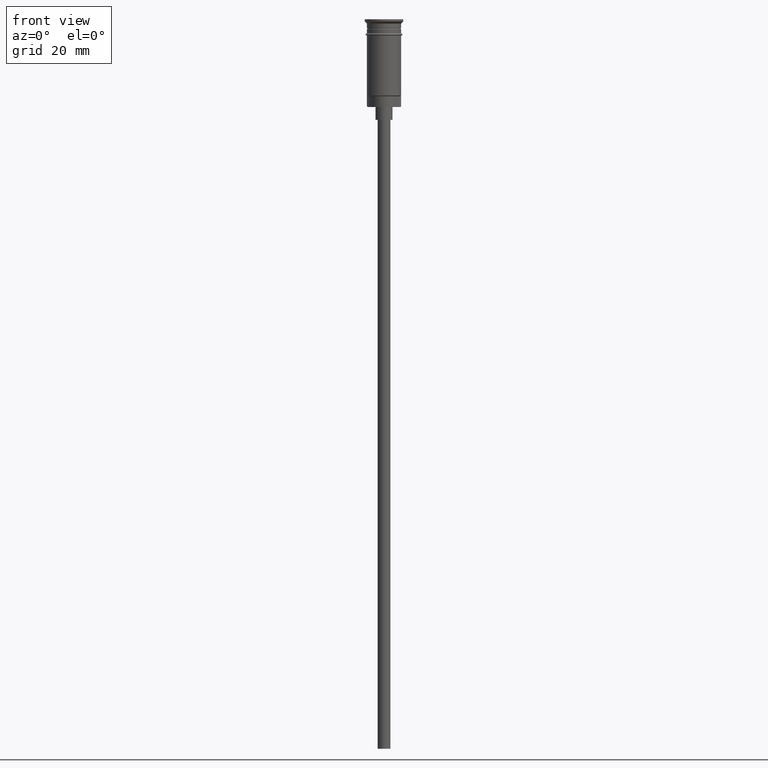
[diagram: clean part render]
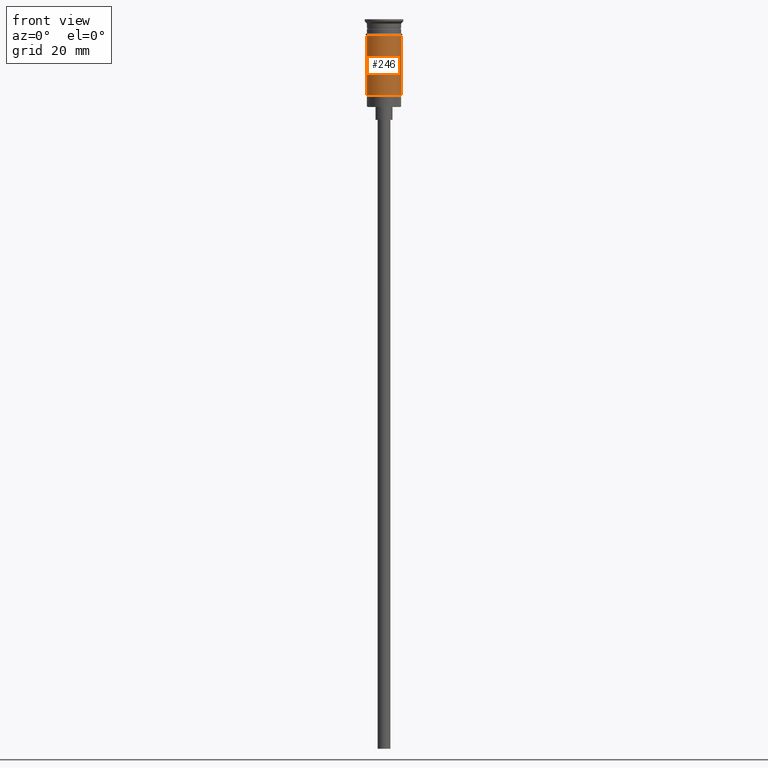
[diagram: same view with one face highlighted and labeled with its STEP entity id]
A machine part, front view. The second image highlights one B-rep face of the part: STEP entity #246.
In plain terms, the highlighted cylindrical surface (edge-blend (fillet) strip) has radius 4 mm, axis along (-0, -0, 1).
Its self-contained STEP definition (entity closure, byte-faithful):
#5 = FACE_OUTER_BOUND ( 'NONE', #204, .T. ) ;
#72 = EDGE_CURVE ( 'NONE', #1213, #1197, #335, .T. ) ;
#76 = DIRECTION ( 'NONE',  ( 1.000000000000000000, 0.000000000000000000, 0.000000000000000000 ) ) ;
#137 = CYLINDRICAL_SURFACE ( 'NONE', #1473, 4.000000000000000000 ) ;
#204 = EDGE_LOOP ( 'NONE', ( #1239, #538, #1518, #950 ) ) ;
#246 = ADVANCED_FACE ( 'NONE', ( #5 ), #137, .T. ) ;
#335 = CIRCLE ( 'NONE', #625, 4.000000000000000000 ) ;
#359 = LINE ( 'NONE', #875, #1301 ) ;
#385 = DIRECTION ( 'NONE',  ( -0.000000000000000000, -0.000000000000000000, 1.000000000000000000 ) ) ;
#449 = CARTESIAN_POINT ( 'NONE',  ( 4.000000000000000000, 0.000000000000000000, -3.799999999999998490 ) ) ;
#467 = DIRECTION ( 'NONE',  ( -0.000000000000000000, -0.000000000000000000, 1.000000000000000000 ) ) ;
#501 = CARTESIAN_POINT ( 'NONE',  ( -4.000000000000000000, 4.898587196589412829E-16, 0.000000000000000000 ) ) ;
#522 = DIRECTION ( 'NONE',  ( 1.000000000000000000, 0.000000000000000000, 0.000000000000000000 ) ) ;
#535 = VERTEX_POINT ( 'NONE', #449 ) ;
#538 = ORIENTED_EDGE ( 'NONE', *, *, #72, .T. ) ;
#625 = AXIS2_PLACEMENT_3D ( 'NONE', #975, #467, #1436 ) ;
#691 = CARTESIAN_POINT ( 'NONE',  ( -3.999999999999997335, 0.000000000000000000, -17.79999999999998295 ) ) ;
#693 = CARTESIAN_POINT ( 'NONE',  ( 0.000000000000000000, 0.000000000000000000, -3.799999999999998490 ) ) ;
#768 = CARTESIAN_POINT ( 'NONE',  ( 0.000000000000000000, 0.000000000000000000, 0.000000000000000000 ) ) ;
#793 = CARTESIAN_POINT ( 'NONE',  ( 4.000000000000000000, 4.898587196589412829E-16, -17.79999999999998295 ) ) ;
#875 = CARTESIAN_POINT ( 'NONE',  ( 4.000000000000000000, 0.000000000000000000, 0.000000000000000000 ) ) ;
#880 = EDGE_CURVE ( 'NONE', #1331, #535, #912, .T. ) ;
#912 = CIRCLE ( 'NONE', #1423, 4.000000000000000000 ) ;
#950 = ORIENTED_EDGE ( 'NONE', *, *, #880, .F. ) ;
#975 = CARTESIAN_POINT ( 'NONE',  ( 0.000000000000000000, 0.000000000000000000, -17.79999999999998295 ) ) ;
#983 = DIRECTION ( 'NONE',  ( -0.000000000000000000, -0.000000000000000000, 1.000000000000000000 ) ) ;
#993 = VECTOR ( 'NONE', #385, 1000.000000000000000 ) ;
#1085 = EDGE_CURVE ( 'NONE', #1197, #535, #359, .T. ) ;
#1114 = DIRECTION ( 'NONE',  ( -0.000000000000000000, -0.000000000000000000, 1.000000000000000000 ) ) ;
#1116 = LINE ( 'NONE', #501, #993 ) ;
#1157 = EDGE_CURVE ( 'NONE', #1213, #1331, #1116, .T. ) ;
#1191 = DIRECTION ( 'NONE',  ( -0.000000000000000000, -0.000000000000000000, 1.000000000000000000 ) ) ;
#1197 = VERTEX_POINT ( 'NONE', #793 ) ;
#1213 = VERTEX_POINT ( 'NONE', #691 ) ;
#1216 = CARTESIAN_POINT ( 'NONE',  ( -4.000000000000000000, 4.898587196589412829E-16, -3.799999999999998490 ) ) ;
#1239 = ORIENTED_EDGE ( 'NONE', *, *, #1157, .F. ) ;
#1301 = VECTOR ( 'NONE', #983, 1000.000000000000000 ) ;
#1331 = VERTEX_POINT ( 'NONE', #1216 ) ;
#1423 = AXIS2_PLACEMENT_3D ( 'NONE', #693, #1191, #76 ) ;
#1436 = DIRECTION ( 'NONE',  ( -1.000000000000000000, 0.000000000000000000, 0.000000000000000000 ) ) ;
#1473 = AXIS2_PLACEMENT_3D ( 'NONE', #768, #1114, #522 ) ;
#1518 = ORIENTED_EDGE ( 'NONE', *, *, #1085, .T. ) ;